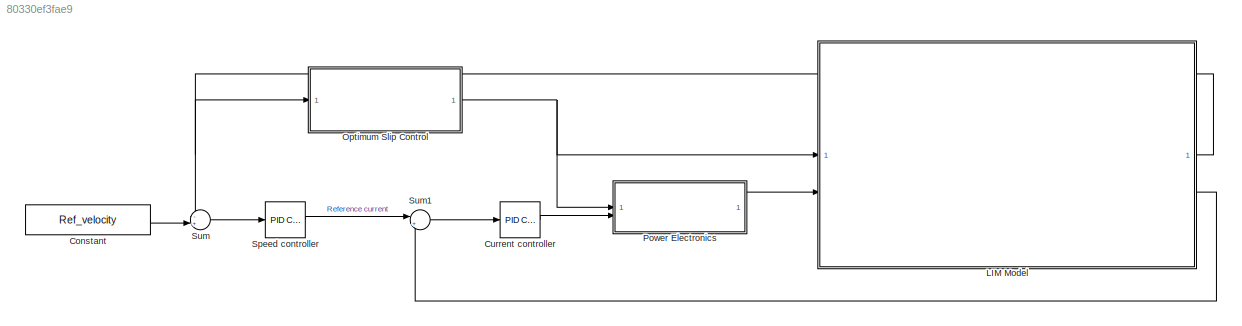
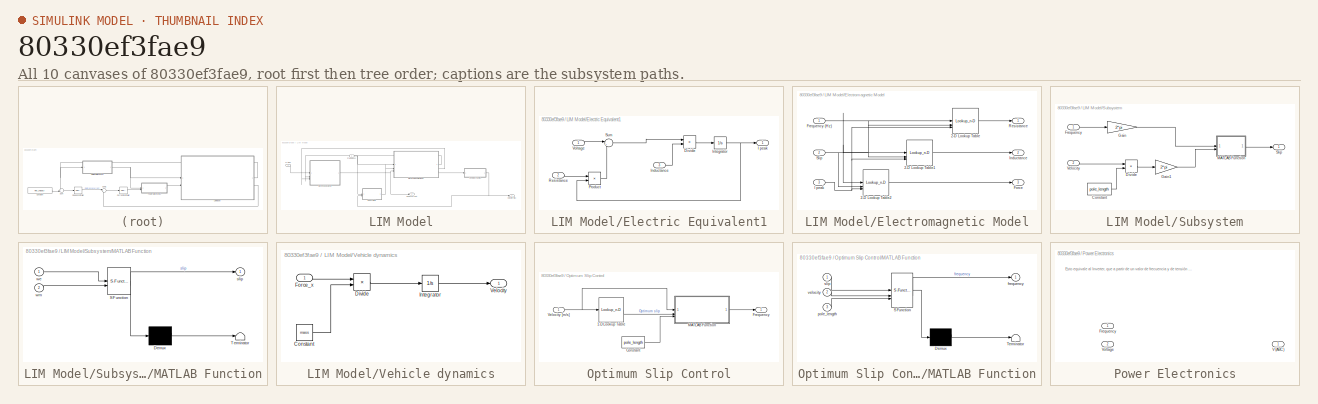
[diagram: thumbnail index - all 10 canvases of the model, root first then tree order]
MODEL slx_80330ef3fae9
KIND model
CONFIG AbsTol = auto
CONFIG EnableMultiTasking = off
CONFIG FixedStep = auto
CONFIG MaxStep = auto
CONFIG MinStep = auto
CONFIG RelTol = 1e-3
CONFIG SampleTimeConstraint = Unconstrained
CONFIG SolverName = VariableStepAuto
CONFIG StartTime = 0.0
CONFIG StopTime = 10.0
BLOCK [Constant] Constant
  Value = Ref_velocity
BLOCK [Reference] Current controller  REF=slpidlib/PID Controller
  SourceBlock = slpidlib/PID Controller
  SourceType = PID 1dof
BLOCK [SubSystem] LIM Model
BLOCK [SubSystem] LIM Model/Electric Equivalent1
BLOCK [Product] LIM Model/Electric Equivalent1/Divide
  Inputs = */
BLOCK [Outport] LIM Model/Electric Equivalent1/I peak
BLOCK [Inport] LIM Model/Electric Equivalent1/Inductance
  Port = 3
BLOCK [Integrator] LIM Model/Electric Equivalent1/Integrator
BLOCK [Product] LIM Model/Electric Equivalent1/Product
BLOCK [Inport] LIM Model/Electric Equivalent1/Resistance
  Port = 2
BLOCK [Sum] LIM Model/Electric Equivalent1/Sum
  Inputs = |+-
BLOCK [Inport] LIM Model/Electric Equivalent1/Voltage
BLOCK [SubSystem] LIM Model/Electromagnetic Model
BLOCK [Lookup_n-D] LIM Model/Electromagnetic Model/2-D Lookup Table
  BreakpointsForDimension1 = [1:3]
  BreakpointsForDimension2 = [1:3]
  InputPortMap = u0,u1,u2
  InternalRulePriority = Speed
  NumberOfTableDimensions = 3
  RndMeth = Simplest
BLOCK [Lookup_n-D] LIM Model/Electromagnetic Model/2-D Lookup Table1
  BreakpointsForDimension1 = [1:3]
  BreakpointsForDimension2 = [1:3]
  InputPortMap = u0,u1,u2
  InternalRulePriority = Speed
  NumberOfTableDimensions = 3
  RndMeth = Simplest
BLOCK [Lookup_n-D] LIM Model/Electromagnetic Model/2-D Lookup Table2
  BreakpointsForDimension1 = [1:3]
  BreakpointsForDimension2 = [1:3]
  InputPortMap = u0,u1,u2
  InternalRulePriority = Speed
  NumberOfTableDimensions = 3
  RndMeth = Simplest
BLOCK [Outport] LIM Model/Electromagnetic Model/Force
  Port = 3
BLOCK [Inport] LIM Model/Electromagnetic Model/Frequency (Hz)
BLOCK [Inport] LIM Model/Electromagnetic Model/I peak
  Port = 3
BLOCK [Outport] LIM Model/Electromagnetic Model/Inductance
  Port = 2
BLOCK [Outport] LIM Model/Electromagnetic Model/Resistance
BLOCK [Inport] LIM Model/Electromagnetic Model/Slip
  Port = 2
BLOCK [Inport] LIM Model/Frequency
BLOCK [Outport] LIM Model/Peak current
  Port = 2
BLOCK [SubSystem] LIM Model/Subsystem
BLOCK [Constant] LIM Model/Subsystem/Constant
  Value = pole_length
BLOCK [Product] LIM Model/Subsystem/Divide
  Inputs = */
BLOCK [Inport] LIM Model/Subsystem/Frequency
BLOCK [Gain] LIM Model/Subsystem/Gain
  Gain = 2*pi
BLOCK [Gain] LIM Model/Subsystem/Gain1
  Gain = 2*pi
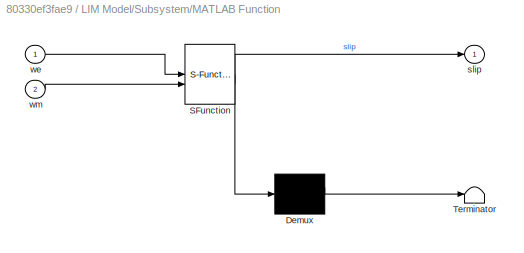
BLOCK [SubSystem] LIM Model/Subsystem/MATLAB Function
  ErrorFcn = Stateflow.Translate.translate
  PermitHierarchicalResolution = ExplicitOnly
  SFBlockType = MATLAB Function
  TreatAsAtomicUnit = on
BLOCK [Demux] LIM Model/Subsystem/MATLAB Function/ Demux 
  Outputs = 1
BLOCK [S-Function] LIM Model/Subsystem/MATLAB Function/ SFunction 
  EnableBusSupport = off
  FunctionName = sf_sfun
  PortCounts = [2 2]
  SFcnIsStateOwnerBlock = off
  SFunctionDeploymentMode = off
  Tag = Stateflow S-Function 4
BLOCK [Terminator] LIM Model/Subsystem/MATLAB Function/ Terminator 
BLOCK [Outport] LIM Model/Subsystem/MATLAB Function/slip
BLOCK [Inport] LIM Model/Subsystem/MATLAB Function/we
BLOCK [Inport] LIM Model/Subsystem/MATLAB Function/wm
  Port = 2
BLOCK [Outport] LIM Model/Subsystem/Slip
BLOCK [Inport] LIM Model/Subsystem/Velocity
  Port = 2
BLOCK [Inport] LIM Model/V (ABC)
  Port = 2
BLOCK [SubSystem] LIM Model/Vehicle dynamics
BLOCK [Constant] LIM Model/Vehicle dynamics/Constant
  Value = mass
BLOCK [Product] LIM Model/Vehicle dynamics/Divide
  Inputs = */
BLOCK [Inport] LIM Model/Vehicle dynamics/Force_x
BLOCK [Integrator] LIM Model/Vehicle dynamics/Integrator
BLOCK [Outport] LIM Model/Vehicle dynamics/Velocity
BLOCK [Outport] LIM Model/Velocity (m//s)
BLOCK [SubSystem] Optimum Slip Control
BLOCK [Lookup_n-D] Optimum Slip Control/1-D Lookup Table
  BreakpointsForDimension1 = [-5:5]
  InputPortMap = u0
  InternalRulePriority = Speed
  NumberOfTableDimensions = 1
  RndMeth = Simplest
  Table = tanh([-5:5])
BLOCK [Constant] Optimum Slip Control/Constant
  Value = pole_length
BLOCK [Outport] Optimum Slip Control/Frequency
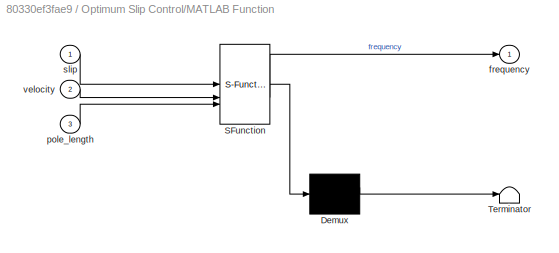
BLOCK [SubSystem] Optimum Slip Control/MATLAB Function
  ErrorFcn = Stateflow.Translate.translate
  PermitHierarchicalResolution = ExplicitOnly
  SFBlockType = MATLAB Function
  TreatAsAtomicUnit = on
BLOCK [Demux] Optimum Slip Control/MATLAB Function/ Demux 
  Outputs = 1
BLOCK [S-Function] Optimum Slip Control/MATLAB Function/ SFunction 
  EnableBusSupport = off
  FunctionName = sf_sfun
  PortCounts = [3 2]
  SFcnIsStateOwnerBlock = off
  SFunctionDeploymentMode = off
  Tag = Stateflow S-Function 2
BLOCK [Terminator] Optimum Slip Control/MATLAB Function/ Terminator 
BLOCK [Outport] Optimum Slip Control/MATLAB Function/frequency
BLOCK [Inport] Optimum Slip Control/MATLAB Function/pole_length
  Port = 3
BLOCK [Inport] Optimum Slip Control/MATLAB Function/slip
BLOCK [Inport] Optimum Slip Control/MATLAB Function/velocity
  Port = 2
BLOCK [Inport] Optimum Slip Control/Velocity [m//s]
BLOCK [SubSystem] Power Electronics
BLOCK [Inport] Power Electronics/Frequency
BLOCK [Outport] Power Electronics/V (ABC)
BLOCK [Inport] Power Electronics/Voltage
  Port = 2
BLOCK [Reference] Speed controller  REF=slpidlib/PID Controller
  SourceBlock = slpidlib/PID Controller
  SourceType = PID 1dof
BLOCK [Sum] Sum
  Inputs = -+|
BLOCK [Sum] Sum1
  Inputs = |+-
ANNOTATION Power Electronics: Esto equivale al Inverter, que a partir de un valor de frecuencia y de tensión genera V abc
LINE Constant:1 -> Sum:2
LINE Current controller:1 -> Power Electronics:2
LINE LIM Model/Electric Equivalent1/Divide:1 -> LIM Model/Electric Equivalent1/Integrator:1
LINE LIM Model/Electric Equivalent1/Inductance:1 -> LIM Model/Electric Equivalent1/Divide:2
NET LIM Model/Electric Equivalent1/Integrator:1 -> LIM Model/Electric Equivalent1/I peak:1, LIM Model/Electric Equivalent1/Product:2
LINE LIM Model/Electric Equivalent1/Product:1 -> LIM Model/Electric Equivalent1/Sum:2
LINE LIM Model/Electric Equivalent1/Resistance:1 -> LIM Model/Electric Equivalent1/Product:1
LINE LIM Model/Electric Equivalent1/Sum:1 -> LIM Model/Electric Equivalent1/Divide:1
LINE LIM Model/Electric Equivalent1/Voltage:1 -> LIM Model/Electric Equivalent1/Sum:1
NET LIM Model/Electric Equivalent1:1 -> LIM Model/Electromagnetic Model:3, LIM Model/Peak current:1
LINE LIM Model/Electromagnetic Model/2-D Lookup Table1:1 -> LIM Model/Electromagnetic Model/Inductance:1
LINE LIM Model/Electromagnetic Model/2-D Lookup Table2:1 -> LIM Model/Electromagnetic Model/Force:1
LINE LIM Model/Electromagnetic Model/2-D Lookup Table:1 -> LIM Model/Electromagnetic Model/Resistance:1
NET LIM Model/Electromagnetic Model/Frequency (Hz):1 -> LIM Model/Electromagnetic Model/2-D Lookup Table1:1, LIM Model/Electromagnetic Model/2-D Lookup Table2:1, LIM Model/Electromagnetic Model/2-D Lookup Table:1
NET LIM Model/Electromagnetic Model/I peak:1 -> LIM Model/Electromagnetic Model/2-D Lookup Table1:3, LIM Model/Electromagnetic Model/2-D Lookup Table2:3, LIM Model/Electromagnetic Model/2-D Lookup Table:3
NET LIM Model/Electromagnetic Model/Slip:1 -> LIM Model/Electromagnetic Model/2-D Lookup Table1:2, LIM Model/Electromagnetic Model/2-D Lookup Table2:2, LIM Model/Electromagnetic Model/2-D Lookup Table:2
LINE LIM Model/Electromagnetic Model:1 -> LIM Model/Electric Equivalent1:2
LINE LIM Model/Electromagnetic Model:2 -> LIM Model/Electric Equivalent1:3
LINE LIM Model/Electromagnetic Model:3 -> LIM Model/Vehicle dynamics:1
NET LIM Model/Frequency:1 -> LIM Model/Electromagnetic Model:1, LIM Model/Subsystem:1
LINE LIM Model/Subsystem/Constant:1 -> LIM Model/Subsystem/Divide:2
LINE LIM Model/Subsystem/Divide:1 -> LIM Model/Subsystem/Gain1:1
LINE LIM Model/Subsystem/Frequency:1 -> LIM Model/Subsystem/Gain:1
LINE LIM Model/Subsystem/Gain1:1 -> LIM Model/Subsystem/MATLAB Function:2
LINE LIM Model/Subsystem/Gain:1 -> LIM Model/Subsystem/MATLAB Function:1
LINE LIM Model/Subsystem/MATLAB Function:1 -> LIM Model/Subsystem/Slip:1
LINE LIM Model/Subsystem/Velocity:1 -> LIM Model/Subsystem/Divide:1
LINE LIM Model/Subsystem:1 -> LIM Model/Electromagnetic Model:2
LINE LIM Model/V (ABC):1 -> LIM Model/Electric Equivalent1:1
LINE LIM Model/Vehicle dynamics/Constant:1 -> LIM Model/Vehicle dynamics/Divide:2
LINE LIM Model/Vehicle dynamics/Divide:1 -> LIM Model/Vehicle dynamics/Integrator:1
LINE LIM Model/Vehicle dynamics/Force_x:1 -> LIM Model/Vehicle dynamics/Divide:1
LINE LIM Model/Vehicle dynamics/Integrator:1 -> LIM Model/Vehicle dynamics/Velocity:1
NET LIM Model/Vehicle dynamics:1 -> LIM Model/Subsystem:2, LIM Model/Velocity (m//s):1
NET LIM Model:1 -> Optimum Slip Control:1, Sum:1
LINE LIM Model:2 -> Sum1:2
LINE Optimum Slip Control/1-D Lookup Table:1 -> Optimum Slip Control/MATLAB Function:2
LINE Optimum Slip Control/Constant:1 -> Optimum Slip Control/MATLAB Function:3
LINE Optimum Slip Control/MATLAB Function:1 -> Optimum Slip Control/Frequency:1
NET Optimum Slip Control/Velocity [m//s]:1 -> Optimum Slip Control/1-D Lookup Table:1, Optimum Slip Control/MATLAB Function:1
NET Optimum Slip Control:1 -> LIM Model:1, Power Electronics:1
LINE Power Electronics:1 -> LIM Model:2
LINE Speed controller:1 -> Sum1:1
LINE Sum1:1 -> Current controller:1
LINE Sum:1 -> Speed controller:1
note: NET lines group one-source signal fan-out (src -> all destinations, sorted); 1:1 wires keep LINE
CHART LIM Model/Subsystem/MATLAB Function states=1 transitions=1
  STATE_LABEL 'eML_blk_kernel()'
  STATE_LABEL 'SCRIPT:\nfunction slip = fcn(we,wm)\n\nslip = (we-wm)/we;\n'
CHART Optimum Slip Control/MATLAB Function states=1 transitions=1
  STATE_LABEL 'eML_blk_kernel()'
  STATE_LABEL 'SCRIPT:\nfunction frequency = fcn(slip, velocity, pole_length)\n\nve = velocity / (1-slip);\n\nfrequency = (ve/pole_length)/(2*pi);\n'
CHART  states=0 transitions=0
CHART  states=0 transitions=0
